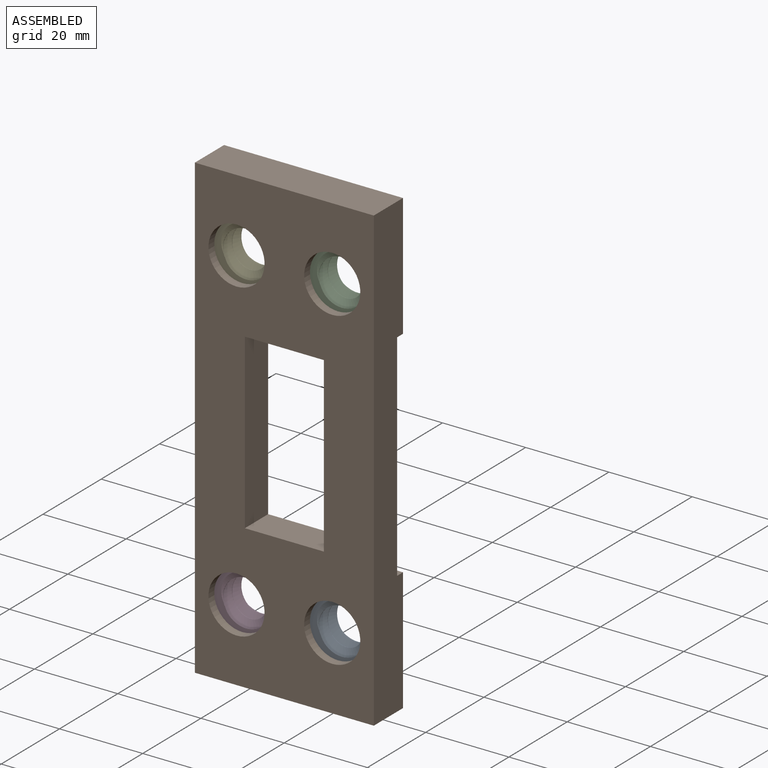
[diagram: assembled view]
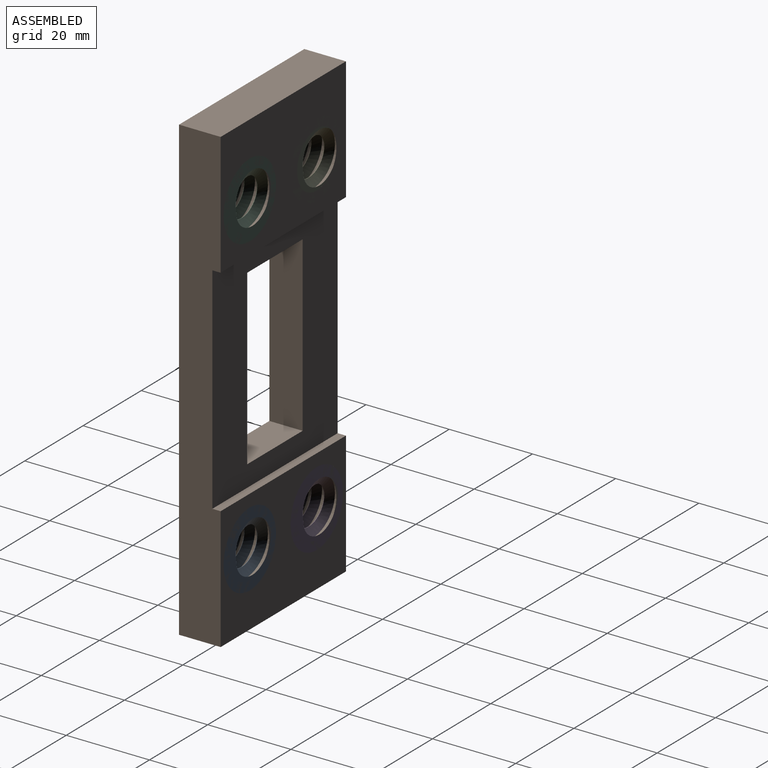
[diagram: assembled view, second angle]
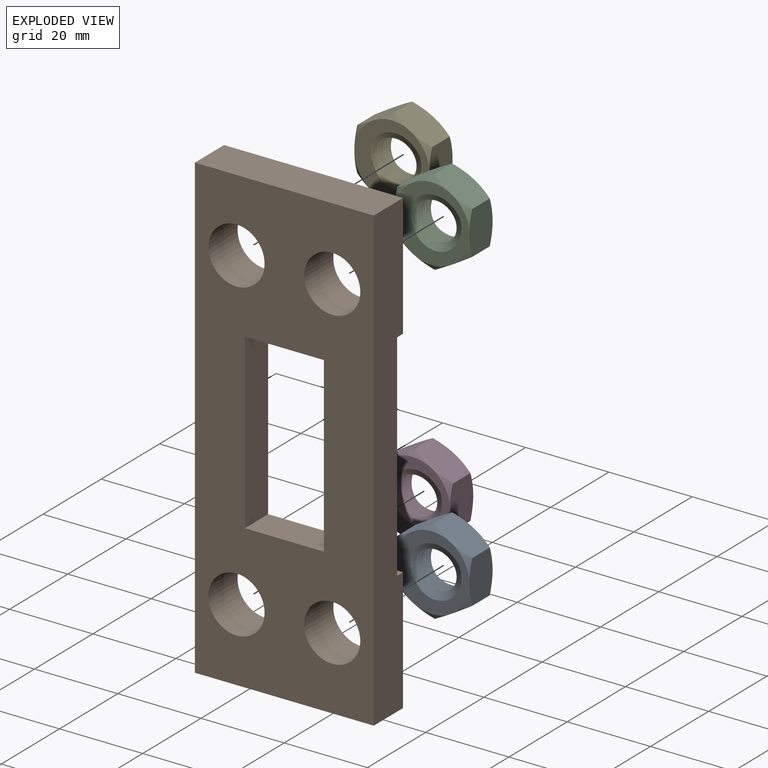
[diagram: exploded view]
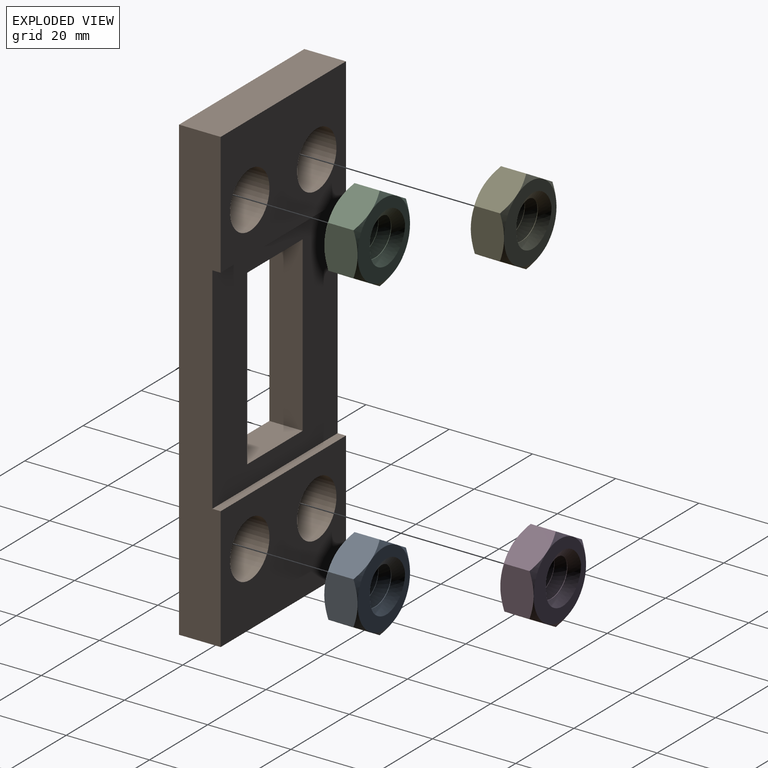
[diagram: exploded view, second angle]
ASSEMBLY  parts=5 mates=4
PART A: 23 faces, bbox 22.8x22.8x13.9 mm
  f0: cylinder r=4.75mm len=9.5mm, axis (0,0,-1), area 7.5mm2, adj f1,f2,f21,f22
  f1: plane 20.02x20.02mm, normal (0,0,1), area 139.2mm2, adj f0,f5,f6,f8,f10,f12,f14,f21
  f2: plane 20.06x20.06mm, normal (0,0,-1), area 139.2mm2, adj f0,f3,f4,f7,f9,f11,f13,f21
  f3: cone r=14.27mm half-angle=55deg, axis (0,0,1), area 8.4mm2, adj f2,f15,f20
  f4: cone r=14.27mm half-angle=55deg, axis (0,0,1), area 8.4mm2, adj f2,f15,f16
  f5: cone r=14.27mm half-angle=55deg, axis (0,0,-1), area 8.4mm2, adj f1,f15,f20
  f6: cone r=14.27mm half-angle=55deg, axis (0,0,-1), area 8.4mm2, adj f1,f15,f16
  f7: cone r=14.27mm half-angle=55deg, axis (0,0,1), area 8.4mm2, adj f2,f16,f17
  f8: cone r=14.27mm half-angle=55deg, axis (0,0,-1), area 8.4mm2, adj f1,f16,f17
  f9: cone r=14.27mm half-angle=55deg, axis (0,0,1), area 8.4mm2, adj f2,f17,f18
  f10: cone r=14.27mm half-angle=55deg, axis (0,0,-1), area 8.4mm2, adj f1,f17,f18
  f11: cone r=14.27mm half-angle=55deg, axis (0,0,1), area 8.4mm2, adj f2,f18,f19
  f12: cone r=14.27mm half-angle=55deg, axis (0,0,-1), area 8.4mm2, adj f1,f18,f19
  f13: cone r=14.27mm half-angle=55deg, axis (0,0,1), area 8.4mm2, adj f2,f19,f20
  f14: cone r=14.27mm half-angle=55deg, axis (0,0,-1), area 8.4mm2, adj f1,f19,f20
  f15: plane 11.29x8.9mm, normal (-1,0,0), area 76.2mm2, adj f3,f4,f5,f6,f16,f20
  f16: plane 9.9x8.91mm, normal (-0.5,0.87,0), area 76.2mm2, adj f4,f6,f7,f8,f15,f17
  f17: plane 9.9x8.91mm, normal (0.5,0.87,0), area 76.2mm2, adj f7,f8,f9,f10,f16,f18
  f18: plane 11.29x8.9mm, normal (1,0,0), area 76.2mm2, adj f9,f10,f11,f12,f17,f19
  f19: plane 9.9x8.91mm, normal (0.5,-0.87,0), area 76.2mm2, adj f11,f12,f13,f14,f18,f20
  f20: plane 9.9x8.91mm, normal (-0.5,-0.87,0), area 76.2mm2, adj f3,f5,f13,f14,f15,f19
  f21: bspline ~16.97x14.7mm, area 295.4mm2, adj f0,f1,f2,f22
  f22: bspline ~16.97x14.7mm, area 295.2mm2, adj f0,f1,f2,f21
PART B: 18 faces, bbox 43x10x110.8 mm
  f0: plane 110.8x43mm, normal (0,1,0), area 3401.4mm2, adj f4,f5,f6,f7,f8,f9,f12,f13
  f1: plane 51.8x43mm, normal (0,-1,0), area 1437mm2, adj f4,f5,f10,f11,f14,f15,f16,f17
  f2: plane 43x29.5mm, normal (0,-1,0), area 982.2mm2, adj f4,f5,f7,f8,f11,f13
  f3: plane 43x29.5mm, normal (0,-1,0), area 982.2mm2, adj f4,f5,f6,f9,f10,f12
  f4: plane 110.8x10mm, normal (1,0,0), area 1004.4mm2, adj f0,f1,f2,f3,f10,f11,f12,f13
  f5: plane 110.8x10mm, normal (-1,0,0), area 1004.4mm2, adj f0,f1,f2,f3,f10,f11,f12,f13
  f6: cylinder r=6.75mm len=13.5mm, axis (0,-1,0), area 424.1mm2, adj f0,f3
  f7: cylinder r=6.75mm len=13.5mm, axis (0,-1,0), area 424.1mm2, adj f0,f2
  f8: cylinder r=6.75mm len=13.5mm, axis (0,-1,0), area 424.1mm2, adj f0,f2
  f9: cylinder r=6.75mm len=13.5mm, axis (0,-1,0), area 424.1mm2, adj f0,f3
  f10: plane 43x2mm, normal (0,0,-1), area 86mm2, adj f1,f3,f4,f5
  f11: plane 43x2mm, normal (0,0,1), area 86mm2, adj f1,f2,f4,f5
  f12: plane 43x10mm, normal (0,0,1), area 430mm2, adj f0,f3,f4,f5
  f13: plane 43x10mm, normal (0,0,-1), area 430mm2, adj f0,f2,f4,f5
  f14: plane 19x8mm, normal (0,0,-1), area 152mm2, adj f0,f1,f15,f17
  f15: plane 41.6x8mm, normal (-1,0,0), area 332.8mm2, adj f0,f1,f14,f16
  f16: plane 19x8mm, normal (0,0,1), area 152mm2, adj f0,f1,f15,f17
  f17: plane 41.6x8mm, normal (1,0,0), area 332.8mm2, adj f0,f1,f14,f16
PART C: same geometry as A
PART D: same geometry as A
PART E: same geometry as A
PLACE A rot(axis=(-1,0,0),90deg) t=(-157.94,135.55,-24.26)mm
PLACE B rot(axis=(-1,0,0),180deg) t=(-3.56,142.05,-11.76)mm
PLACE C rot(axis=(-1,0,0),90deg) t=(-157.94,135.55,51.54)mm
PLACE D rot(axis=(-1,0,0),90deg) t=(-180.94,135.55,-24.26)mm
PLACE E rot(axis=(-1,0,0),90deg) t=(-180.94,135.55,51.54)mm
MATE fastened B.f9 <-> A.f3  axis (0,1,0) through (-157.94,143.55,-24.26)mm
MATE fastened E.f3 <-> B.f8  axis (0,1,0) through (-180.94,143.55,51.54)mm
MATE fastened C.f3 <-> B.f7  axis (0,1,0) through (-157.94,143.55,51.54)mm
MATE fastened B.f6 <-> D.f3  axis (0,1,0) through (-180.94,143.55,-24.26)mm
